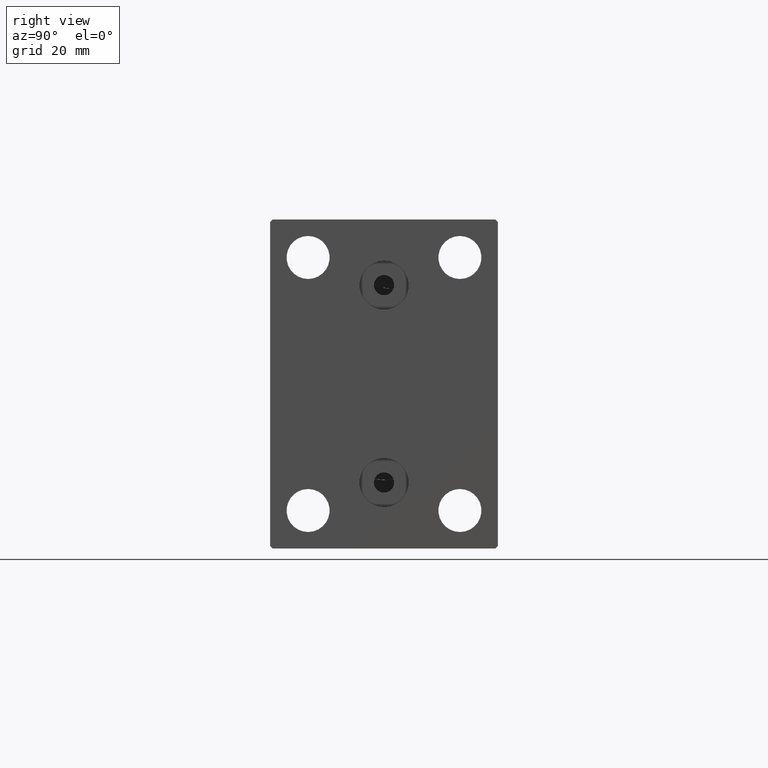
[diagram: clean part render]
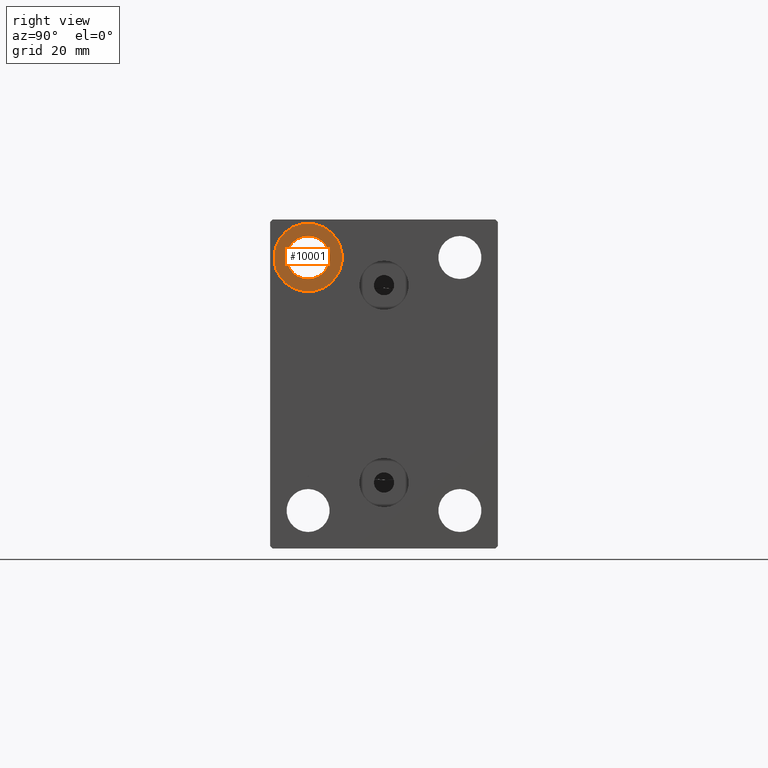
[diagram: same view with one face highlighted and labeled with its STEP entity id]
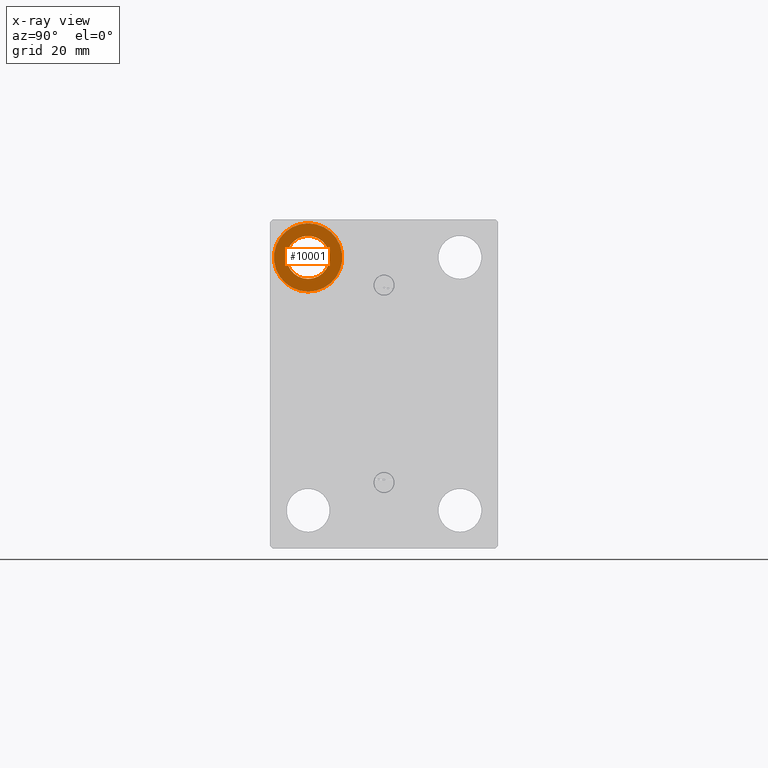
[diagram: x-ray of the same camera — body ghosted, the highlighted face saturated]
A machine part, right view. The second image highlights one B-rep face of the part: STEP entity #10001.
The next image is the same camera in x-ray: the body ghosted, the highlighted face saturated — about 0% of this face is hidden behind the body in this view.
In plain terms, the highlighted planar face has unit normal (1, 0, 0).
Its self-contained STEP definition (entity closure, byte-faithful):
#1153 = AXIS2_PLACEMENT_3D ( 'NONE', #19425, #36047, #40038 ) ;
#4447 = CARTESIAN_POINT ( 'NONE',  ( 101.0000000000000000, -14.99999999999999645, 29.25000000000000000 ) ) ;
#4542 = EDGE_CURVE ( 'NONE', #7396, #37003, #13760, .T. ) ;
#5060 = CARTESIAN_POINT ( 'NONE',  ( 101.0000000000000000, -14.99999999999999645, 25.00000000000000000 ) ) ;
#5668 = DIRECTION ( 'NONE',  ( -1.000000000000000000, -0.000000000000000000, -0.000000000000000000 ) ) ;
#7396 = VERTEX_POINT ( 'NONE', #36566 ) ;
#7782 = DIRECTION ( 'NONE',  ( 0.000000000000000000, 0.000000000000000000, -1.000000000000000000 ) ) ;
#7843 = VERTEX_POINT ( 'NONE', #4447 ) ;
#9477 = FACE_OUTER_BOUND ( 'NONE', #25792, .T. ) ;
#9838 = AXIS2_PLACEMENT_3D ( 'NONE', #21829, #14756, #18510 ) ;
#10001 = ADVANCED_FACE ( 'NONE', ( #9477, #22967 ), #33161, .T. ) ;
#10842 = CARTESIAN_POINT ( 'NONE',  ( 101.0000000000000000, -14.99999999999999645, 20.75000000000000355 ) ) ;
#13760 = CIRCLE ( 'NONE', #25066, 6.749999999999999112 ) ;
#13941 = VERTEX_POINT ( 'NONE', #10842 ) ;
#14756 = DIRECTION ( 'NONE',  ( -1.000000000000000000, -0.000000000000000000, -0.000000000000000000 ) ) ;
#15389 = EDGE_CURVE ( 'NONE', #37003, #7396, #20408, .T. ) ;
#15980 = EDGE_CURVE ( 'NONE', #13941, #7843, #31722, .T. ) ;
#17267 = CIRCLE ( 'NONE', #42047, 4.249999999999996447 ) ;
#18345 = ORIENTED_EDGE ( 'NONE', *, *, #15980, .T. ) ;
#18510 = DIRECTION ( 'NONE',  ( 0.000000000000000000, 0.000000000000000000, 1.000000000000000000 ) ) ;
#18991 = DIRECTION ( 'NONE',  ( 0.000000000000000000, 0.000000000000000000, 1.000000000000000000 ) ) ;
#19378 = CARTESIAN_POINT ( 'NONE',  ( 101.0000000000000000, -14.99999999999999645, 25.00000000000000000 ) ) ;
#19425 = CARTESIAN_POINT ( 'NONE',  ( 101.0000000000000000, 0.000000000000000000, 0.000000000000000000 ) ) ;
#20408 = CIRCLE ( 'NONE', #9838, 6.749999999999999112 ) ;
#21047 = DIRECTION ( 'NONE',  ( -1.000000000000000000, -0.000000000000000000, -0.000000000000000000 ) ) ;
#21829 = CARTESIAN_POINT ( 'NONE',  ( 101.0000000000000000, -14.99999999999999645, 25.00000000000000000 ) ) ;
#22967 = FACE_BOUND ( 'NONE', #36464, .T. ) ;
#24244 = ORIENTED_EDGE ( 'NONE', *, *, #15389, .F. ) ;
#24975 = DIRECTION ( 'NONE',  ( -1.000000000000000000, -0.000000000000000000, -0.000000000000000000 ) ) ;
#25066 = AXIS2_PLACEMENT_3D ( 'NONE', #5060, #24975, #18991 ) ;
#25792 = EDGE_LOOP ( 'NONE', ( #24244, #37079 ) ) ;
#29785 = DIRECTION ( 'NONE',  ( 0.000000000000000000, 0.000000000000000000, -1.000000000000000000 ) ) ;
#31722 = CIRCLE ( 'NONE', #39518, 4.249999999999996447 ) ;
#33012 = ORIENTED_EDGE ( 'NONE', *, *, #37389, .T. ) ;
#33161 = PLANE ( 'NONE',  #1153 ) ;
#36047 = DIRECTION ( 'NONE',  ( 1.000000000000000000, 0.000000000000000000, -0.000000000000000000 ) ) ;
#36453 = CARTESIAN_POINT ( 'NONE',  ( 101.0000000000000000, -14.99999999999999645, 18.25000000000000355 ) ) ;
#36464 = EDGE_LOOP ( 'NONE', ( #33012, #18345 ) ) ;
#36566 = CARTESIAN_POINT ( 'NONE',  ( 101.0000000000000000, -14.99999999999999645, 31.75000000000000000 ) ) ;
#37003 = VERTEX_POINT ( 'NONE', #36453 ) ;
#37079 = ORIENTED_EDGE ( 'NONE', *, *, #4542, .F. ) ;
#37389 = EDGE_CURVE ( 'NONE', #7843, #13941, #17267, .T. ) ;
#38326 = CARTESIAN_POINT ( 'NONE',  ( 101.0000000000000000, -14.99999999999999645, 25.00000000000000000 ) ) ;
#39518 = AXIS2_PLACEMENT_3D ( 'NONE', #38326, #21047, #7782 ) ;
#40038 = DIRECTION ( 'NONE',  ( 0.000000000000000000, 0.000000000000000000, 1.000000000000000000 ) ) ;
#42047 = AXIS2_PLACEMENT_3D ( 'NONE', #19378, #5668, #29785 ) ;